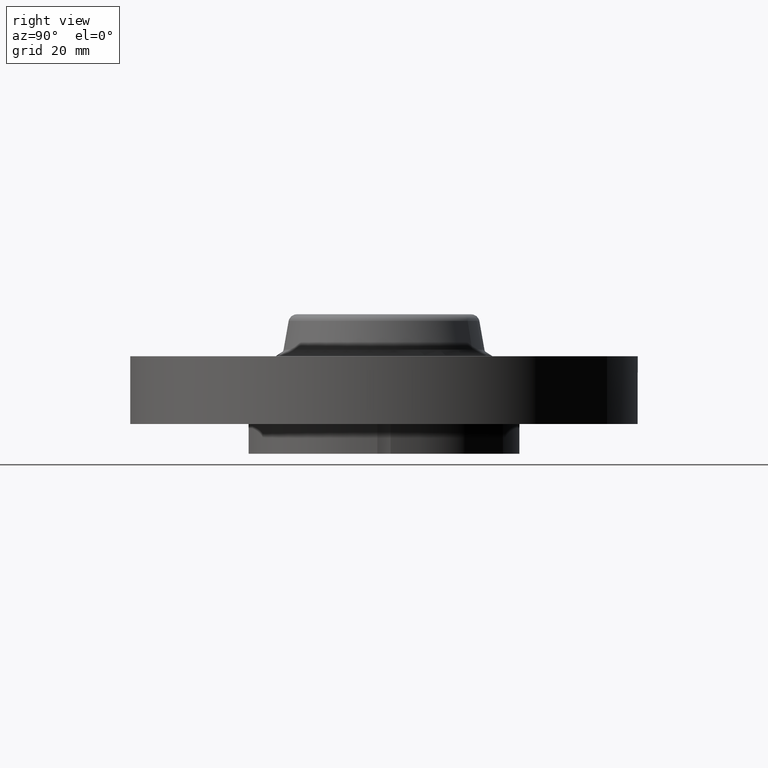
[diagram: clean part render]
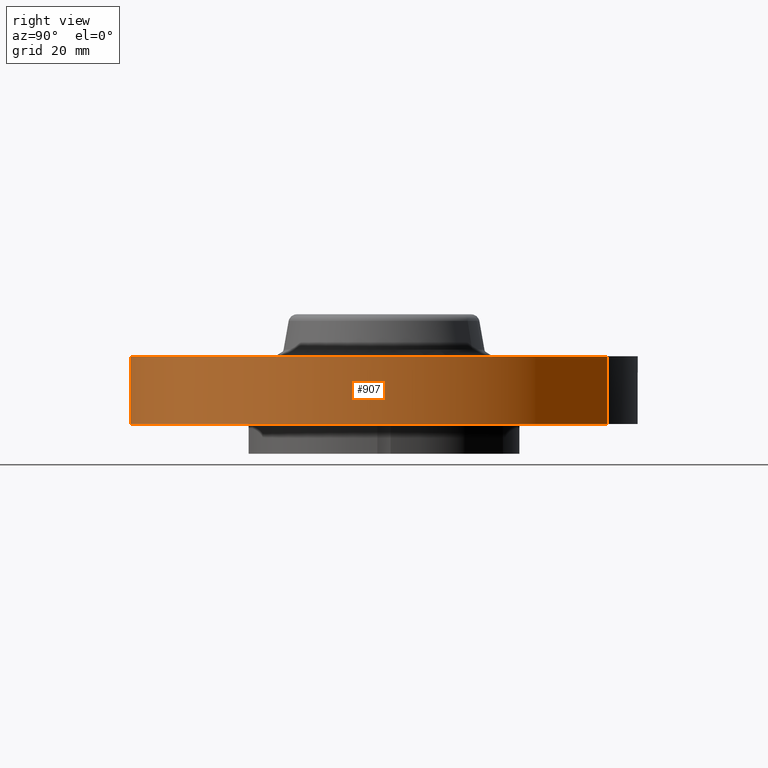
[diagram: same view with one face highlighted and labeled with its STEP entity id]
A machine part, right view. The second image highlights one B-rep face of the part: STEP entity #907.
In plain terms, the highlighted cylindrical surface (partial cylindrical patch) has radius 47.625 mm, axis along (0, 0, -1).
Its self-contained STEP definition (entity closure, byte-faithful):
#697=AXIS2_PLACEMENT_3D('Circle Axis2P3D',#695,#696,$) ;
#880=AXIS2_PLACEMENT_3D('Cylinder Axis2P3D',#877,#878,#879) ;
#884=AXIS2_PLACEMENT_3D('Circle Axis2P3D',#882,#883,$) ;
#695=CARTESIAN_POINT('Axis2P3D Location',(8.39223703654E-016,1.0000469394E-011,0.500000000002)) ;
#699=CARTESIAN_POINT('Vertex',(0.898922884866,1.64546730357,0.500000000002)) ;
#701=CARTESIAN_POINT('Vertex',(-0.898922884888,-1.64546730355,0.499999999986)) ;
#877=CARTESIAN_POINT('Axis2P3D Location',(0.,0.,0.295500000001)) ;
#882=CARTESIAN_POINT('Axis2P3D Location',(0.,0.,1.55491018136E-011)) ;
#886=CARTESIAN_POINT('Vertex',(0.898922884866,1.64546730355,0.)) ;
#888=CARTESIAN_POINT('Vertex',(-0.898922884866,-1.64546730358,0.)) ;
#891=CARTESIAN_POINT('Line Origine',(0.898922884888,1.64546730355,0.250000000001)) ;
#896=CARTESIAN_POINT('Line Origine',(-0.898922884888,-1.64546730355,0.250000000001)) ;
#696=DIRECTION('Axis2P3D Direction',(0.,0.,-0.0393700787402)) ;
#878=DIRECTION('Axis2P3D Direction',(0.,0.,-0.0393700787402)) ;
#879=DIRECTION('Axis2P3D XDirection',(0.0188750212049,0.0345504945626,0.)) ;
#883=DIRECTION('Axis2P3D Direction',(0.,0.,-0.0393700787402)) ;
#892=DIRECTION('Vector Direction',(0.,0.,-0.0393700787402)) ;
#897=DIRECTION('Vector Direction',(0.,0.,-0.0393700787402)) ;
#893=VECTOR('Line Direction',#892,0.0393700787402) ;
#898=VECTOR('Line Direction',#897,0.0393700787402) ;
#902=ORIENTED_EDGE('',*,*,#890,.F.) ;
#903=ORIENTED_EDGE('',*,*,#895,.T.) ;
#904=ORIENTED_EDGE('',*,*,#703,.T.) ;
#905=ORIENTED_EDGE('',*,*,#900,.F.) ;
#907=ADVANCED_FACE('PartBody',(#906),#881,.T.) ;
#698=CIRCLE('generated circle',#697,1.87500000001) ;
#885=CIRCLE('generated circle',#884,1.87500000001) ;
#881=CYLINDRICAL_SURFACE('generated cylinder',#880,1.87500000001) ;
#703=EDGE_CURVE('',#700,#702,#698,.T.) ;
#890=EDGE_CURVE('',#887,#889,#885,.T.) ;
#895=EDGE_CURVE('',#887,#700,#894,.F.) ;
#900=EDGE_CURVE('',#889,#702,#899,.F.) ;
#901=EDGE_LOOP('',(#902,#903,#904,#905)) ;
#906=FACE_OUTER_BOUND('',#901,.T.) ;
#894=LINE('Line',#891,#893) ;
#899=LINE('Line',#896,#898) ;
#700=VERTEX_POINT('',#699) ;
#702=VERTEX_POINT('',#701) ;
#887=VERTEX_POINT('',#886) ;
#889=VERTEX_POINT('',#888) ;